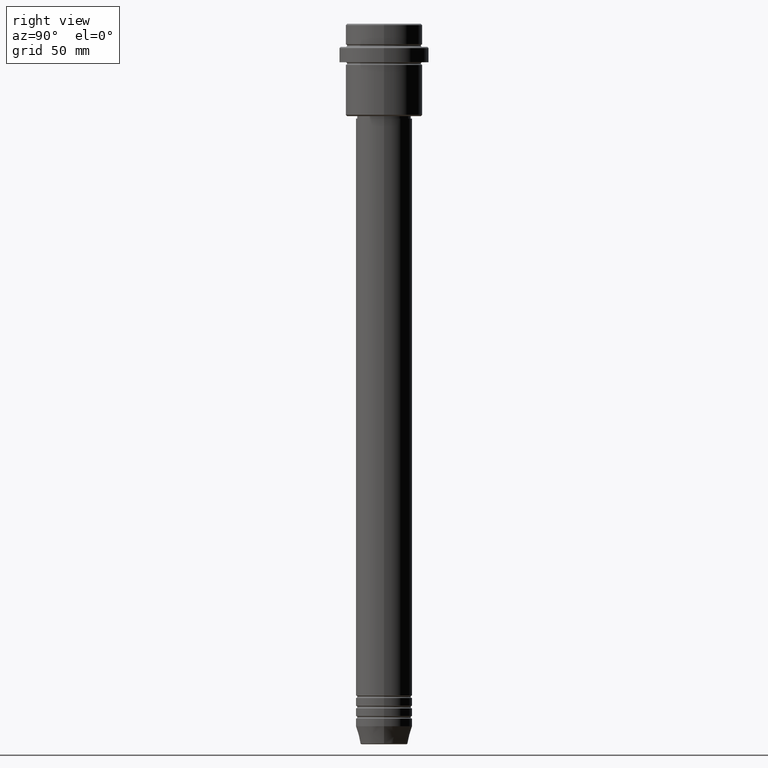
[diagram: clean part render]
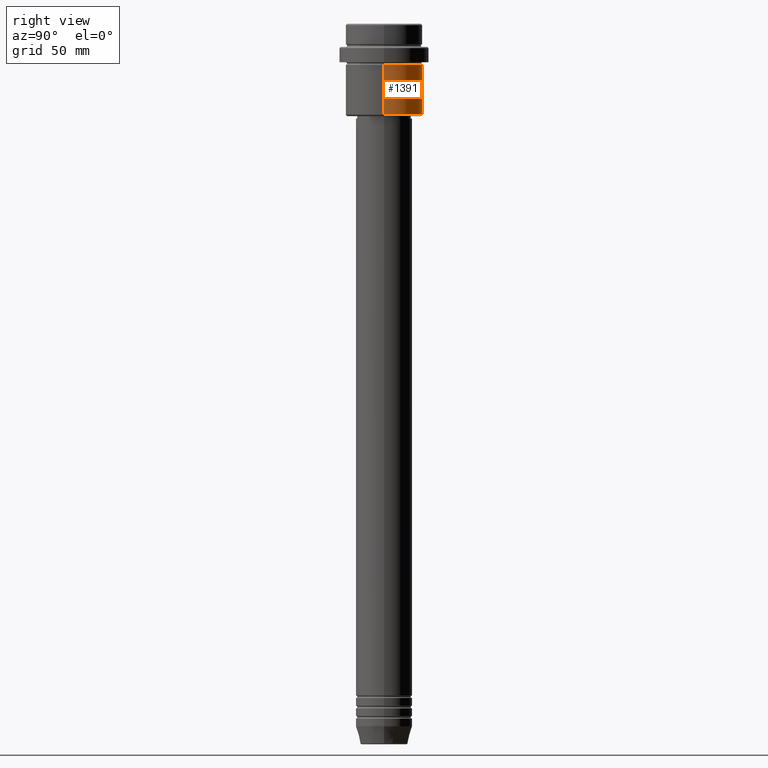
[diagram: same view with one face highlighted and labeled with its STEP entity id]
A machine part, right view. The second image highlights one B-rep face of the part: STEP entity #1391.
In plain terms, the highlighted cylindrical surface (partial cylindrical patch) has radius 15 mm, axis along (-0, -0, 1).
Its self-contained STEP definition (entity closure, byte-faithful):
#24 = VERTEX_POINT ( 'NONE', #445 ) ;
#86 = DIRECTION ( 'NONE',  ( 1.000000000000000000, 0.000000000000000000, 0.000000000000000000 ) ) ;
#104 = AXIS2_PLACEMENT_3D ( 'NONE', #677, #350, #799 ) ;
#142 = CARTESIAN_POINT ( 'NONE',  ( -15.00000000000000000, 1.836970198721029589E-15, -35.50000000000005684 ) ) ;
#187 = VERTEX_POINT ( 'NONE', #142 ) ;
#277 = EDGE_CURVE ( 'NONE', #328, #1281, #1285, .T. ) ;
#299 = DIRECTION ( 'NONE',  ( -0.000000000000000000, -0.000000000000000000, 1.000000000000000000 ) ) ;
#301 = DIRECTION ( 'NONE',  ( -0.000000000000000000, -0.000000000000000000, 1.000000000000000000 ) ) ;
#305 = DIRECTION ( 'NONE',  ( -1.000000000000000000, 0.000000000000000000, 0.000000000000000000 ) ) ;
#306 = CIRCLE ( 'NONE', #1296, 15.00000000000000178 ) ;
#307 = CARTESIAN_POINT ( 'NONE',  ( 15.00000000000000000, 0.000000000000000000, 0.000000000000000000 ) ) ;
#316 = CARTESIAN_POINT ( 'NONE',  ( 15.00000000000000000, 0.000000000000000000, -35.50000000000005684 ) ) ;
#328 = VERTEX_POINT ( 'NONE', #316 ) ;
#339 = EDGE_CURVE ( 'NONE', #187, #24, #622, .T. ) ;
#350 = DIRECTION ( 'NONE',  ( -0.000000000000000000, -0.000000000000000000, 1.000000000000000000 ) ) ;
#352 = EDGE_CURVE ( 'NONE', #1281, #24, #306, .T. ) ;
#430 = ORIENTED_EDGE ( 'NONE', *, *, #352, .F. ) ;
#445 = CARTESIAN_POINT ( 'NONE',  ( -15.00000000000000355, 1.836970198721029983E-15, -16.00000000000000000 ) ) ;
#525 = CIRCLE ( 'NONE', #866, 15.00000000000000000 ) ;
#564 = CYLINDRICAL_SURFACE ( 'NONE', #104, 15.00000000000000000 ) ;
#622 = LINE ( 'NONE', #1061, #915 ) ;
#651 = CARTESIAN_POINT ( 'NONE',  ( 0.000000000000000000, 0.000000000000000000, -35.50000000000005684 ) ) ;
#659 = CARTESIAN_POINT ( 'NONE',  ( 15.00000000000000178, 0.000000000000000000, -16.00000000000000000 ) ) ;
#677 = CARTESIAN_POINT ( 'NONE',  ( 0.000000000000000000, 0.000000000000000000, 0.000000000000000000 ) ) ;
#746 = ORIENTED_EDGE ( 'NONE', *, *, #781, .T. ) ;
#781 = EDGE_CURVE ( 'NONE', #328, #187, #525, .T. ) ;
#799 = DIRECTION ( 'NONE',  ( 1.000000000000000000, 0.000000000000000000, 0.000000000000000000 ) ) ;
#846 = DIRECTION ( 'NONE',  ( -0.000000000000000000, -0.000000000000000000, 1.000000000000000000 ) ) ;
#866 = AXIS2_PLACEMENT_3D ( 'NONE', #651, #299, #305 ) ;
#915 = VECTOR ( 'NONE', #301, 1000.000000000000000 ) ;
#1038 = ORIENTED_EDGE ( 'NONE', *, *, #339, .T. ) ;
#1061 = CARTESIAN_POINT ( 'NONE',  ( -15.00000000000000000, 1.836970198721029589E-15, 0.000000000000000000 ) ) ;
#1081 = DIRECTION ( 'NONE',  ( -0.000000000000000000, -0.000000000000000000, 1.000000000000000000 ) ) ;
#1092 = ORIENTED_EDGE ( 'NONE', *, *, #277, .F. ) ;
#1110 = EDGE_LOOP ( 'NONE', ( #746, #1038, #430, #1092 ) ) ;
#1215 = FACE_OUTER_BOUND ( 'NONE', #1110, .T. ) ;
#1281 = VERTEX_POINT ( 'NONE', #659 ) ;
#1285 = LINE ( 'NONE', #307, #1361 ) ;
#1296 = AXIS2_PLACEMENT_3D ( 'NONE', #1388, #1081, #86 ) ;
#1361 = VECTOR ( 'NONE', #846, 1000.000000000000000 ) ;
#1388 = CARTESIAN_POINT ( 'NONE',  ( 0.000000000000000000, 0.000000000000000000, -16.00000000000000000 ) ) ;
#1391 = ADVANCED_FACE ( 'NONE', ( #1215 ), #564, .T. ) ;